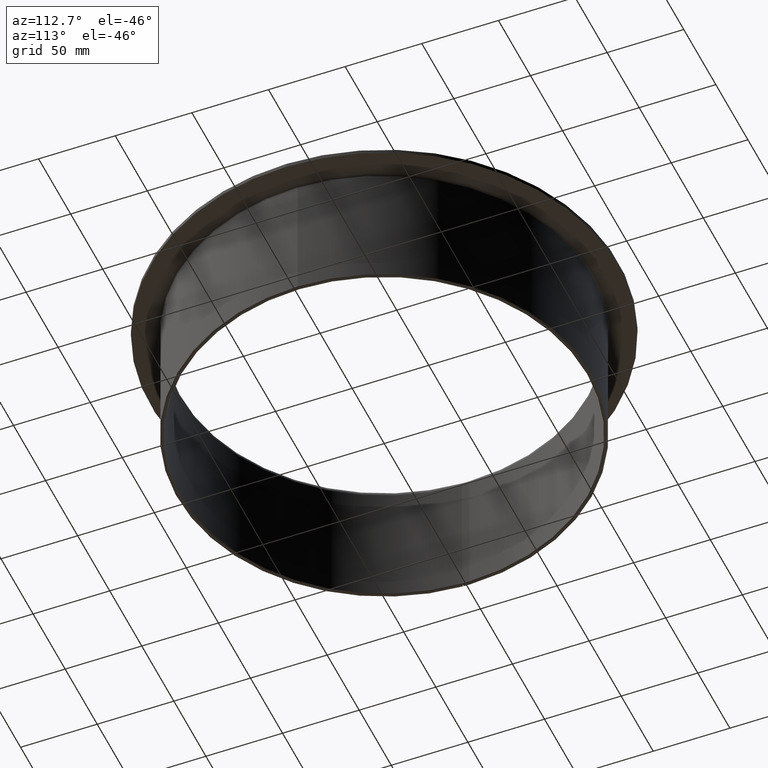
[diagram: clean part render]
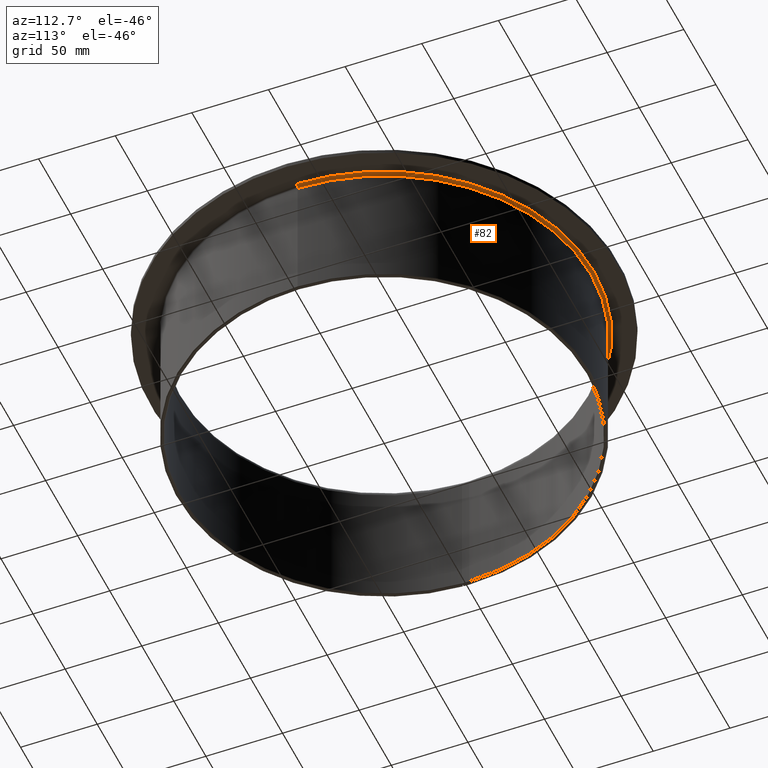
[diagram: same view with one face highlighted and labeled with its STEP entity id]
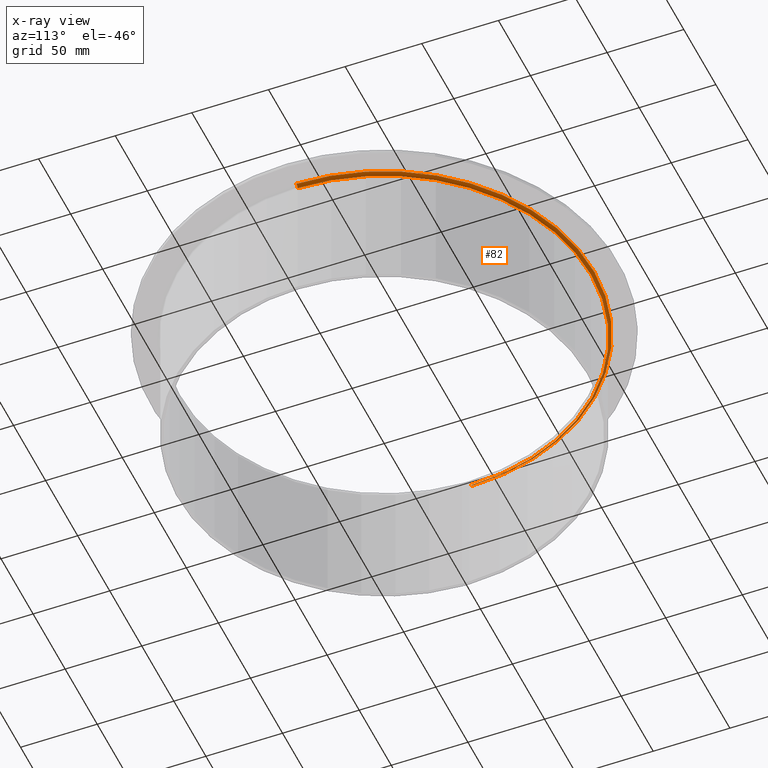
[diagram: x-ray of the same camera — body ghosted, the highlighted face saturated]
A machine part, auxiliary view. The second image highlights one B-rep face of the part: STEP entity #82.
The next image is the same camera in x-ray: the body ghosted, the highlighted face saturated — about 4% of this face is hidden behind the body in this view.
In plain terms, the highlighted toroidal blend (fillet) surface has major radius 137 mm and minor (blend) radius 2 mm.
Its self-contained STEP definition (entity closure, byte-faithful):
#82=ADVANCED_FACE('',(#116),#117,.F.);
#116=FACE_OUTER_BOUND('',#168,.T.);
#117=TOROIDAL_SURFACE('',#169,137.0,2.0);
#168=EDGE_LOOP('',(#255,#256,#257,#258));
#169=AXIS2_PLACEMENT_3D('',#259,#260,#261);
#255=ORIENTED_EDGE('',*,*,#436,.F.);
#256=ORIENTED_EDGE('',*,*,#437,.T.);
#257=ORIENTED_EDGE('',*,*,#433,.F.);
#258=ORIENTED_EDGE('',*,*,#438,.F.);
#259=CARTESIAN_POINT('',(2.22044604925031E-015,-3.71059565656411E-015,85.5));
#260=DIRECTION('',(-1.16269284789061E-031,-6.12323399573677E-017,1.0));
#261=DIRECTION('',(-1.0,1.89882151931499E-015,0.0));
#433=EDGE_CURVE('',#515,#510,#516,.T.);
#436=EDGE_CURVE('',#505,#520,#521,.T.);
#437=EDGE_CURVE('',#505,#510,#522,.T.);
#438=EDGE_CURVE('',#520,#515,#523,.T.);
#505=VERTEX_POINT('',#615);
#510=VERTEX_POINT('',#622);
#515=VERTEX_POINT('',#629);
#516=CIRCLE('',#630,2.0);
#520=VERTEX_POINT('',#647);
#521=CIRCLE('',#648,2.0);
#522=CIRCLE('',#649,135.0);
#523=CIRCLE('',#650,137.0);
#615=CARTESIAN_POINT('',(135.0,-2.76584232552576E-013,85.5));
#622=CARTESIAN_POINT('',(-135.0,2.69163041239448E-013,85.5));
#629=CARTESIAN_POINT('',(-137.0,2.73083148957993E-013,87.5));
#630=AXIS2_PLACEMENT_3D('',#816,#817,#818);
#647=CARTESIAN_POINT('',(137.0,-2.80749269630951E-013,87.5));
#648=AXIS2_PLACEMENT_3D('',#822,#823,#824);
#649=AXIS2_PLACEMENT_3D('',#825,#826,#827);
#650=AXIS2_PLACEMENT_3D('',#828,#829,#830);
#816=CARTESIAN_POINT('',(-137.0,2.73205613637908E-013,85.5));
#817=DIRECTION('',(2.02128619922972E-015,1.0,6.12323399573677E-017));
#818=DIRECTION('',(-1.0,2.02128619922972E-015,7.49879891330928E-033));
#822=CARTESIAN_POINT('',(137.0,-2.80626804951036E-013,85.5));
#823=DIRECTION('',(2.02128619922972E-015,1.0,6.12323399573677E-017));
#824=DIRECTION('',(1.0,-2.02128619922972E-015,-7.49879891330928E-033));
#825=CARTESIAN_POINT('',(-7.04575888216064E-030,-3.7105956565641E-015,85.5));
#826=DIRECTION('',(-1.16269284789061E-031,-6.12323399573677E-017,1.0));
#827=DIRECTION('',(-1.0,1.88237377125682E-015,-1.00713410063056E-033));
#828=CARTESIAN_POINT('',(-7.04575888216064E-030,-3.7105956565641E-015,87.5));
#829=DIRECTION('',(-1.16269284789061E-031,-6.12323399573677E-017,1.0));
#830=DIRECTION('',(-1.0,1.88237377125682E-015,-1.00713410063058E-033));